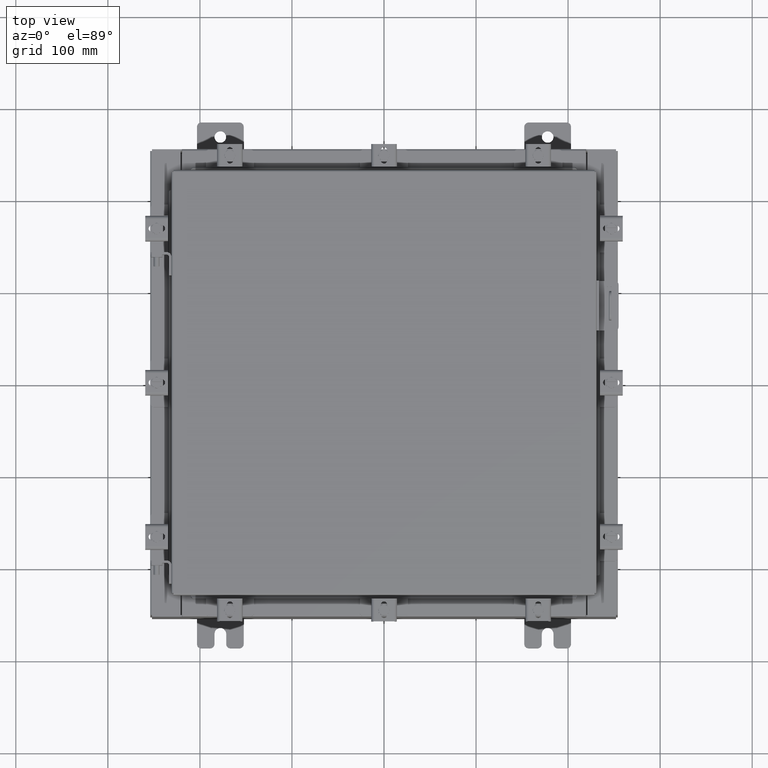
[diagram: clean part render]
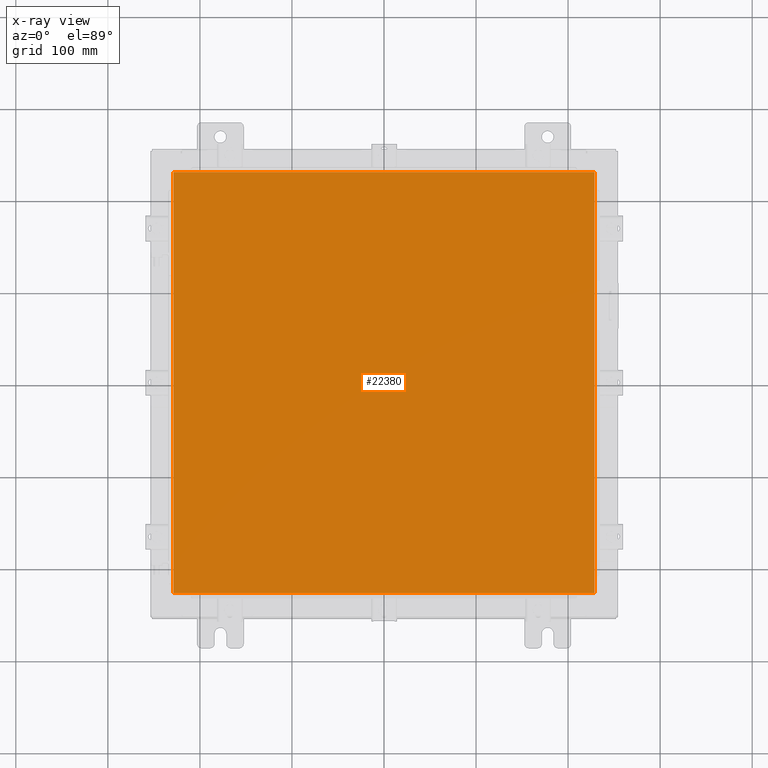
[diagram: x-ray — body ghosted, one internal face saturated and labeled with its STEP entity id]
A machine part, top view, then the same camera in x-ray: the body is ghosted and one INTERNAL B-rep face — a face not visible from any outside direction — is saturated and labeled: STEP entity #22380.
In plain terms, the highlighted planar face has unit normal (0, 0, -1).
Its self-contained STEP definition (entity closure, byte-faithful):
#18 = CARTESIAN_POINT ( 'NONE',  ( -9.006299999999997800, 9.006299999999997800, -0.07470000000000015500 ) ) ;
#979 = VERTEX_POINT ( 'NONE', #8919 ) ;
#1934 = VERTEX_POINT ( 'NONE', #18 ) ;
#2193 = LINE ( 'NONE', #4242, #12027 ) ;
#2865 = CARTESIAN_POINT ( 'NONE',  ( 9.006300000000001300, 9.006299999999999500, -0.07470000000000015500 ) ) ;
#4242 = CARTESIAN_POINT ( 'NONE',  ( -9.006299999999997800, 9.006299999999999500, -0.07470000000000125200 ) ) ;
#4244 = CARTESIAN_POINT ( 'NONE',  ( -9.006299999999997800, -9.006299999999999500, -0.07470000000000015500 ) ) ;
#4427 = PLANE ( 'NONE',  #6259 ) ;
#4803 = CARTESIAN_POINT ( 'NONE',  ( 9.006299999999999500, 9.006299999999999500, -0.07470000000000015500 ) ) ;
#4955 = VERTEX_POINT ( 'NONE', #18710 ) ;
#6195 = DIRECTION ( 'NONE',  ( -1.000000000000000000, 0.0000000000000000000, -0.0000000000000000000 ) ) ;
#6259 = AXIS2_PLACEMENT_3D ( 'NONE', #14896, #16648, #6195 ) ;
#7028 = ORIENTED_EDGE ( 'NONE', *, *, #10203, .F. ) ;
#7128 = ORIENTED_EDGE ( 'NONE', *, *, #7681, .F. ) ;
#7240 = EDGE_CURVE ( 'NONE', #979, #4955, #22326, .T. ) ;
#7681 = EDGE_CURVE ( 'NONE', #4955, #9811, #10083, .T. ) ;
#8468 = VECTOR ( 'NONE', #18140, 39.37007874015748100 ) ;
#8919 = CARTESIAN_POINT ( 'NONE',  ( -9.006299999999997800, -9.006299999999999500, -0.07470000000000015500 ) ) ;
#9231 = CARTESIAN_POINT ( 'NONE',  ( 9.006300000000001300, -9.006299999999999500, -0.07470000000000015500 ) ) ;
#9400 = DIRECTION ( 'NONE',  ( 0.0000000000000000000, -1.000000000000000000, 0.0000000000000000000 ) ) ;
#9534 = VECTOR ( 'NONE', #12709, 39.37007874015748100 ) ;
#9811 = VERTEX_POINT ( 'NONE', #4803 ) ;
#10083 = LINE ( 'NONE', #9231, #9534 ) ;
#10203 = EDGE_CURVE ( 'NONE', #1934, #979, #2193, .T. ) ;
#12027 = VECTOR ( 'NONE', #9400, 39.37007874015748100 ) ;
#12709 = DIRECTION ( 'NONE',  ( 0.0000000000000000000, 1.000000000000000000, 0.0000000000000000000 ) ) ;
#13015 = LINE ( 'NONE', #2865, #17127 ) ;
#14864 = ORIENTED_EDGE ( 'NONE', *, *, #15481, .F. ) ;
#14896 = CARTESIAN_POINT ( 'NONE',  ( 0.0000000000000000000, 0.0000000000000000000, -0.07470000000000015500 ) ) ;
#15481 = EDGE_CURVE ( 'NONE', #9811, #1934, #13015, .T. ) ;
#15503 = ORIENTED_EDGE ( 'NONE', *, *, #7240, .F. ) ;
#16648 = DIRECTION ( 'NONE',  ( 0.0000000000000000000, 0.0000000000000000000, -1.000000000000000000 ) ) ;
#17127 = VECTOR ( 'NONE', #18573, 39.37007874015748100 ) ;
#18140 = DIRECTION ( 'NONE',  ( 1.000000000000000000, -0.0000000000000000000, -0.0000000000000000000 ) ) ;
#18573 = DIRECTION ( 'NONE',  ( -1.000000000000000000, -0.0000000000000000000, -0.0000000000000000000 ) ) ;
#18710 = CARTESIAN_POINT ( 'NONE',  ( 9.006300000000001300, -9.006299999999999500, -0.07470000000000015500 ) ) ;
#20744 = EDGE_LOOP ( 'NONE', ( #7128, #15503, #7028, #14864 ) ) ;
#22213 = FACE_OUTER_BOUND ( 'NONE', #20744, .T. ) ;
#22326 = LINE ( 'NONE', #4244, #8468 ) ;
#22380 = ADVANCED_FACE ( 'NONE', ( #22213 ), #4427, .T. ) ;